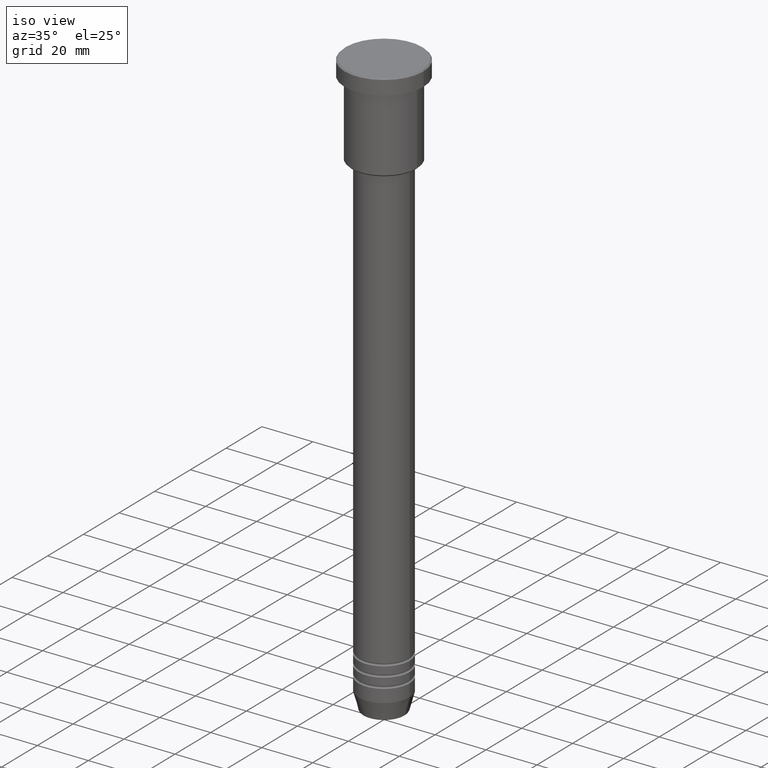
[diagram: clean part render]
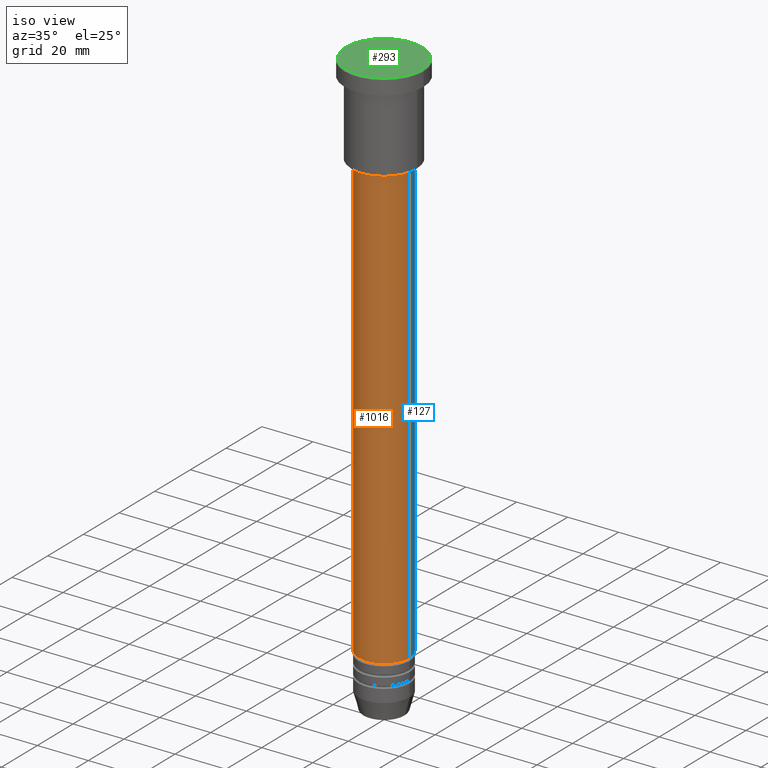
[diagram: same view with three faces highlighted in distinct colors, each labeled with its STEP entity id]
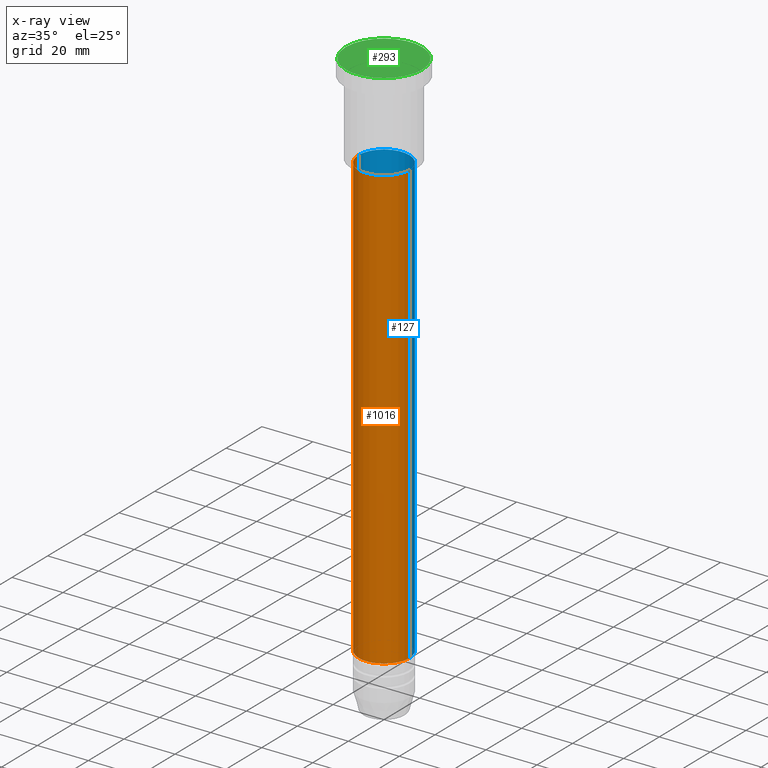
[diagram: x-ray of the same camera — body ghosted, the three highlighted faces saturated]
A machine part, iso view with three faces highlighted in distinct colors.
The next image is the same camera in x-ray (body ghosted, the three faces saturated) — at least one of them is partly hidden behind the body in this view.
Their STEP definitions:

[orange] entity #1016 — the highlighted cylindrical surface (edge-blend (fillet) strip) has radius 10 mm, axis along (-0, -0, 1).
#17 = VERTEX_POINT ( 'NONE', #135 ) ;
#48 = AXIS2_PLACEMENT_3D ( 'NONE', #840, #668, #1022 ) ;
#57 = CARTESIAN_POINT ( 'NONE',  ( -9.999999999999998224, 1.224646799147353256E-15, -37.00000000000007105 ) ) ;
#78 = CARTESIAN_POINT ( 'NONE',  ( 0.000000000000000000, 0.000000000000000000, 0.000000000000000000 ) ) ;
#102 = AXIS2_PLACEMENT_3D ( 'NONE', #748, #1007, #1023 ) ;
#133 = ORIENTED_EDGE ( 'NONE', *, *, #378, .T. ) ;
#135 = CARTESIAN_POINT ( 'NONE',  ( 10.00000000000000178, 0.000000000000000000, -209.9999999999999432 ) ) ;
#173 = DIRECTION ( 'NONE',  ( -0.000000000000000000, -0.000000000000000000, 1.000000000000000000 ) ) ;
#177 = EDGE_CURVE ( 'NONE', #843, #750, #989, .T. ) ;
#263 = EDGE_CURVE ( 'NONE', #750, #929, #590, .T. ) ;
#312 = ORIENTED_EDGE ( 'NONE', *, *, #662, .T. ) ;
#378 = EDGE_CURVE ( 'NONE', #17, #929, #874, .T. ) ;
#405 = AXIS2_PLACEMENT_3D ( 'NONE', #78, #1164, #532 ) ;
#415 = DIRECTION ( 'NONE',  ( -0.000000000000000000, -0.000000000000000000, 1.000000000000000000 ) ) ;
#473 = VECTOR ( 'NONE', #173, 1000.000000000000000 ) ;
#505 = CARTESIAN_POINT ( 'NONE',  ( 10.00000000000000000, 0.000000000000000000, 0.000000000000000000 ) ) ;
#532 = DIRECTION ( 'NONE',  ( 1.000000000000000000, 0.000000000000000000, 0.000000000000000000 ) ) ;
#535 = CARTESIAN_POINT ( 'NONE',  ( -10.00000000000000000, 1.224646799147353256E-15, 0.000000000000000000 ) ) ;
#575 = CIRCLE ( 'NONE', #48, 10.00000000000000178 ) ;
#590 = CIRCLE ( 'NONE', #102, 9.999999999999998224 ) ;
#662 = EDGE_CURVE ( 'NONE', #843, #17, #575, .T. ) ;
#668 = DIRECTION ( 'NONE',  ( -0.000000000000000000, -0.000000000000000000, 1.000000000000000000 ) ) ;
#699 = VECTOR ( 'NONE', #415, 1000.000000000000000 ) ;
#706 = ORIENTED_EDGE ( 'NONE', *, *, #263, .F. ) ;
#748 = CARTESIAN_POINT ( 'NONE',  ( 0.000000000000000000, 0.000000000000000000, -37.00000000000007105 ) ) ;
#750 = VERTEX_POINT ( 'NONE', #57 ) ;
#762 = EDGE_LOOP ( 'NONE', ( #1144, #312, #133, #706 ) ) ;
#840 = CARTESIAN_POINT ( 'NONE',  ( 0.000000000000000000, 0.000000000000000000, -209.9999999999999432 ) ) ;
#843 = VERTEX_POINT ( 'NONE', #915 ) ;
#874 = LINE ( 'NONE', #505, #699 ) ;
#877 = CYLINDRICAL_SURFACE ( 'NONE', #405, 10.00000000000000000 ) ;
#915 = CARTESIAN_POINT ( 'NONE',  ( -10.00000000000000178, 1.224646799147353454E-15, -209.9999999999999432 ) ) ;
#929 = VERTEX_POINT ( 'NONE', #1117 ) ;
#989 = LINE ( 'NONE', #535, #473 ) ;
#1007 = DIRECTION ( 'NONE',  ( -0.000000000000000000, -0.000000000000000000, 1.000000000000000000 ) ) ;
#1016 = ADVANCED_FACE ( 'NONE', ( #1081 ), #877, .T. ) ;
#1022 = DIRECTION ( 'NONE',  ( 1.000000000000000000, 0.000000000000000000, 0.000000000000000000 ) ) ;
#1023 = DIRECTION ( 'NONE',  ( 1.000000000000000000, 0.000000000000000000, 0.000000000000000000 ) ) ;
#1081 = FACE_OUTER_BOUND ( 'NONE', #762, .T. ) ;
#1117 = CARTESIAN_POINT ( 'NONE',  ( 9.999999999999998224, 0.000000000000000000, -37.00000000000007105 ) ) ;
#1144 = ORIENTED_EDGE ( 'NONE', *, *, #177, .F. ) ;
#1164 = DIRECTION ( 'NONE',  ( -0.000000000000000000, -0.000000000000000000, 1.000000000000000000 ) ) ;

[blue] entity #127 — the highlighted cylindrical surface (edge-blend (fillet) strip) has radius 10 mm, axis along (-0, -0, 1).
#15 = EDGE_LOOP ( 'NONE', ( #1087, #226, #1027, #412 ) ) ;
#17 = VERTEX_POINT ( 'NONE', #135 ) ;
#29 = AXIS2_PLACEMENT_3D ( 'NONE', #467, #393, #279 ) ;
#57 = CARTESIAN_POINT ( 'NONE',  ( -9.999999999999998224, 1.224646799147353256E-15, -37.00000000000007105 ) ) ;
#84 = CYLINDRICAL_SURFACE ( 'NONE', #785, 10.00000000000000000 ) ;
#127 = ADVANCED_FACE ( 'NONE', ( #817 ), #84, .T. ) ;
#135 = CARTESIAN_POINT ( 'NONE',  ( 10.00000000000000178, 0.000000000000000000, -209.9999999999999432 ) ) ;
#173 = DIRECTION ( 'NONE',  ( -0.000000000000000000, -0.000000000000000000, 1.000000000000000000 ) ) ;
#177 = EDGE_CURVE ( 'NONE', #843, #750, #989, .T. ) ;
#191 = EDGE_CURVE ( 'NONE', #929, #750, #452, .T. ) ;
#200 = CIRCLE ( 'NONE', #29, 10.00000000000000178 ) ;
#226 = ORIENTED_EDGE ( 'NONE', *, *, #177, .T. ) ;
#279 = DIRECTION ( 'NONE',  ( 1.000000000000000000, 0.000000000000000000, 0.000000000000000000 ) ) ;
#376 = DIRECTION ( 'NONE',  ( -0.000000000000000000, -0.000000000000000000, 1.000000000000000000 ) ) ;
#378 = EDGE_CURVE ( 'NONE', #17, #929, #874, .T. ) ;
#393 = DIRECTION ( 'NONE',  ( -0.000000000000000000, -0.000000000000000000, 1.000000000000000000 ) ) ;
#412 = ORIENTED_EDGE ( 'NONE', *, *, #378, .F. ) ;
#415 = DIRECTION ( 'NONE',  ( -0.000000000000000000, -0.000000000000000000, 1.000000000000000000 ) ) ;
#439 = DIRECTION ( 'NONE',  ( 1.000000000000000000, 0.000000000000000000, 0.000000000000000000 ) ) ;
#452 = CIRCLE ( 'NONE', #844, 9.999999999999998224 ) ;
#467 = CARTESIAN_POINT ( 'NONE',  ( 0.000000000000000000, 0.000000000000000000, -209.9999999999999432 ) ) ;
#473 = VECTOR ( 'NONE', #173, 1000.000000000000000 ) ;
#505 = CARTESIAN_POINT ( 'NONE',  ( 10.00000000000000000, 0.000000000000000000, 0.000000000000000000 ) ) ;
#535 = CARTESIAN_POINT ( 'NONE',  ( -10.00000000000000000, 1.224646799147353256E-15, 0.000000000000000000 ) ) ;
#648 = EDGE_CURVE ( 'NONE', #17, #843, #200, .T. ) ;
#699 = VECTOR ( 'NONE', #415, 1000.000000000000000 ) ;
#750 = VERTEX_POINT ( 'NONE', #57 ) ;
#785 = AXIS2_PLACEMENT_3D ( 'NONE', #1162, #889, #977 ) ;
#813 = CARTESIAN_POINT ( 'NONE',  ( 0.000000000000000000, 0.000000000000000000, -37.00000000000007105 ) ) ;
#817 = FACE_OUTER_BOUND ( 'NONE', #15, .T. ) ;
#843 = VERTEX_POINT ( 'NONE', #915 ) ;
#844 = AXIS2_PLACEMENT_3D ( 'NONE', #813, #376, #439 ) ;
#874 = LINE ( 'NONE', #505, #699 ) ;
#889 = DIRECTION ( 'NONE',  ( -0.000000000000000000, -0.000000000000000000, 1.000000000000000000 ) ) ;
#915 = CARTESIAN_POINT ( 'NONE',  ( -10.00000000000000178, 1.224646799147353454E-15, -209.9999999999999432 ) ) ;
#929 = VERTEX_POINT ( 'NONE', #1117 ) ;
#977 = DIRECTION ( 'NONE',  ( 1.000000000000000000, 0.000000000000000000, 0.000000000000000000 ) ) ;
#989 = LINE ( 'NONE', #535, #473 ) ;
#1027 = ORIENTED_EDGE ( 'NONE', *, *, #191, .F. ) ;
#1087 = ORIENTED_EDGE ( 'NONE', *, *, #648, .T. ) ;
#1117 = CARTESIAN_POINT ( 'NONE',  ( 9.999999999999998224, 0.000000000000000000, -37.00000000000007105 ) ) ;
#1162 = CARTESIAN_POINT ( 'NONE',  ( 0.000000000000000000, 0.000000000000000000, 0.000000000000000000 ) ) ;

[green] entity #293 — the highlighted planar face has unit normal (0, -0, 1).
#4 = DIRECTION ( 'NONE',  ( 1.000000000000000000, 0.000000000000000000, 0.000000000000000000 ) ) ;
#93 = DIRECTION ( 'NONE',  ( 1.000000000000000000, 0.000000000000000000, 0.000000000000000000 ) ) ;
#118 = FACE_OUTER_BOUND ( 'NONE', #1181, .T. ) ;
#185 = CARTESIAN_POINT ( 'NONE',  ( 0.000000000000000000, 0.000000000000000000, 0.000000000000000000 ) ) ;
#203 = DIRECTION ( 'NONE',  ( 0.000000000000000000, -0.000000000000000000, 1.000000000000000000 ) ) ;
#234 = CIRCLE ( 'NONE', #862, 14.99999999999998579 ) ;
#284 = DIRECTION ( 'NONE',  ( -0.000000000000000000, -0.000000000000000000, 1.000000000000000000 ) ) ;
#293 = ADVANCED_FACE ( 'NONE', ( #118 ), #918, .T. ) ;
#409 = ORIENTED_EDGE ( 'NONE', *, *, #1136, .T. ) ;
#464 = CARTESIAN_POINT ( 'NONE',  ( 14.99999999999998579, 1.867586368699712587E-15, 0.000000000000000000 ) ) ;
#499 = VERTEX_POINT ( 'NONE', #551 ) ;
#551 = CARTESIAN_POINT ( 'NONE',  ( -14.99999999999998579, 0.000000000000000000, 0.000000000000000000 ) ) ;
#581 = CARTESIAN_POINT ( 'NONE',  ( 0.000000000000000000, 0.000000000000000000, 0.000000000000000000 ) ) ;
#613 = EDGE_CURVE ( 'NONE', #842, #499, #646, .T. ) ;
#641 = CARTESIAN_POINT ( 'NONE',  ( 0.000000000000000000, 0.000000000000000000, 0.000000000000000000 ) ) ;
#646 = CIRCLE ( 'NONE', #978, 14.99999999999998579 ) ;
#735 = AXIS2_PLACEMENT_3D ( 'NONE', #581, #203, #4 ) ;
#801 = ORIENTED_EDGE ( 'NONE', *, *, #613, .T. ) ;
#842 = VERTEX_POINT ( 'NONE', #464 ) ;
#862 = AXIS2_PLACEMENT_3D ( 'NONE', #185, #284, #93 ) ;
#918 = PLANE ( 'NONE',  #735 ) ;
#978 = AXIS2_PLACEMENT_3D ( 'NONE', #641, #1122, #1028 ) ;
#1028 = DIRECTION ( 'NONE',  ( 1.000000000000000000, 0.000000000000000000, 0.000000000000000000 ) ) ;
#1122 = DIRECTION ( 'NONE',  ( -0.000000000000000000, -0.000000000000000000, 1.000000000000000000 ) ) ;
#1136 = EDGE_CURVE ( 'NONE', #499, #842, #234, .T. ) ;
#1181 = EDGE_LOOP ( 'NONE', ( #409, #801 ) ) ;